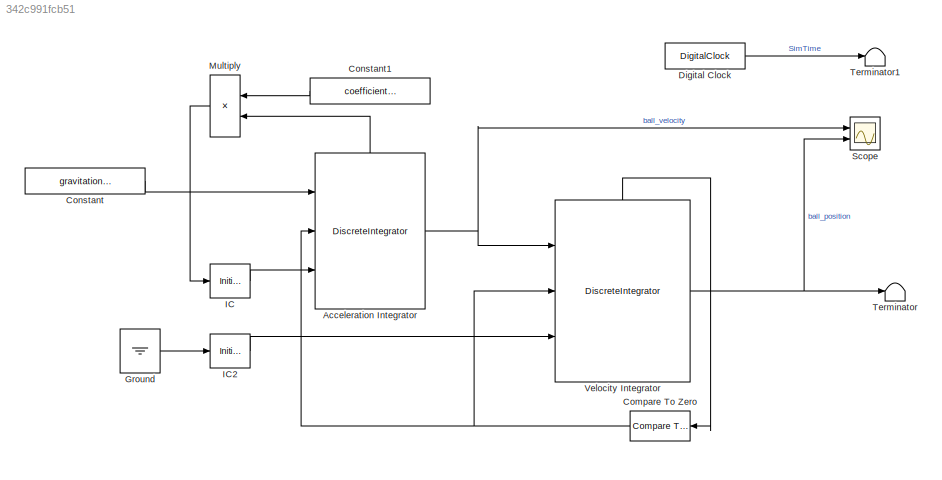
MODEL slx_342c991fcb51
KIND model
CONFIG AbsTol = auto
CONFIG EnableMultiTasking = off
CONFIG FixedStep = Ts
CONFIG MaxStep = 1e-3
CONFIG MinStep = auto
CONFIG RelTol = 1e-3
CONFIG SampleTimeConstraint = Unconstrained
CONFIG Solver = FixedStepDiscrete
CONFIG SolverName = FixedStepDiscrete
CONFIG StartTime = 0.0
CONFIG StopTime = 25
BLOCK [DiscreteIntegrator] Acceleration Integrator
  ExternalReset = rising
  ICPrevOutput = DiscIntNeverNeededParam
  ICPrevScaledInput = DiscIntNeverNeededParam
  InitialConditionSetting = Auto
  InitialConditionSource = external
  OutDataTypeStr = single
  Ports = [3, 1, 0, 0, 1]
  SampleTime = -1
  ShowStatePort = on
BLOCK [Reference] Compare To Zero  REF=simulink/Logic and Bit
Operations/Compare
To Zero
  Ports = [1, 1]
  SourceBlock = simulink/Logic and Bit\nOperations/Compare\nTo Zero
  SourceProductBaseCode = SL
  SourceProductName = Simulink
  SourceType = Compare To Zero
BLOCK [Constant] Constant
  OutDataTypeStr = single
  OutMax = 25
  OutMin = -25
  Value = gravitational_constant
BLOCK [Constant] Constant1
  OutDataTypeStr = single
  Value = coefficient_of_restitution
BLOCK [DigitalClock] Digital Clock
  SampleTime = 1e-3
BLOCK [Ground] Ground
BLOCK [InitialCondition] IC
  Value = 15
BLOCK [InitialCondition] IC2
  Value = 10
BLOCK [Product] Multiply
  InputSameDT = off
  Ports = [2, 1]
  RndMeth = Floor
  SaturateOnIntegerOverflow = off
BLOCK [Scope] Scope
  Floating = off
  NumInputPorts = 2
  Ports = [2]
  ScopeSpecificationString = Simulink.scopes.TimeScopeBlockCfg('CurrentConfiguration', extmgr.ConfigurationSet(extmgr.Configuration('Core','General UI',true),extmgr.Configuration('Core','Source UI',true),extmgr.Configuration('Sources','WiredSimulink',true),extmgr.Configuration('Visuals','Time Domain',true,'SerializedDisplays',{struct('MinYLimReal','-25.73342','MaxYLimReal','26.69775','YLabelReal','','MinYLimMag','0.00000','Ma...<+1388ch>
BLOCK [Terminator] Terminator
BLOCK [Terminator] Terminator1
BLOCK [DiscreteIntegrator] Velocity Integrator
  ExternalReset = rising
  ICPrevOutput = DiscIntNeverNeededParam
  ICPrevScaledInput = DiscIntNeverNeededParam
  InitialConditionSetting = Auto
  InitialConditionSource = external
  Ports = [3, 1, 0, 0, 1]
  SampleTime = -1
  ShowStatePort = on
NET Acceleration Integrator:1 -> Scope:1, Velocity Integrator:1
LINE Acceleration Integrator:state -> Multiply:2
NET Compare To Zero:1 -> Acceleration Integrator:2, Velocity Integrator:2
LINE Constant1:1 -> Multiply:1
LINE Constant:1 -> Acceleration Integrator:1
LINE Digital Clock:1 -> Terminator1:1
LINE Ground:1 -> IC2:1
LINE IC2:1 -> Velocity Integrator:3
LINE IC:1 -> Acceleration Integrator:3
LINE Multiply:1 -> IC:1
NET Velocity Integrator:1 -> Scope:2, Terminator:1
LINE Velocity Integrator:state -> Compare To Zero:1
note: NET lines group one-source signal fan-out (src -> all destinations, sorted); 1:1 wires keep LINE
